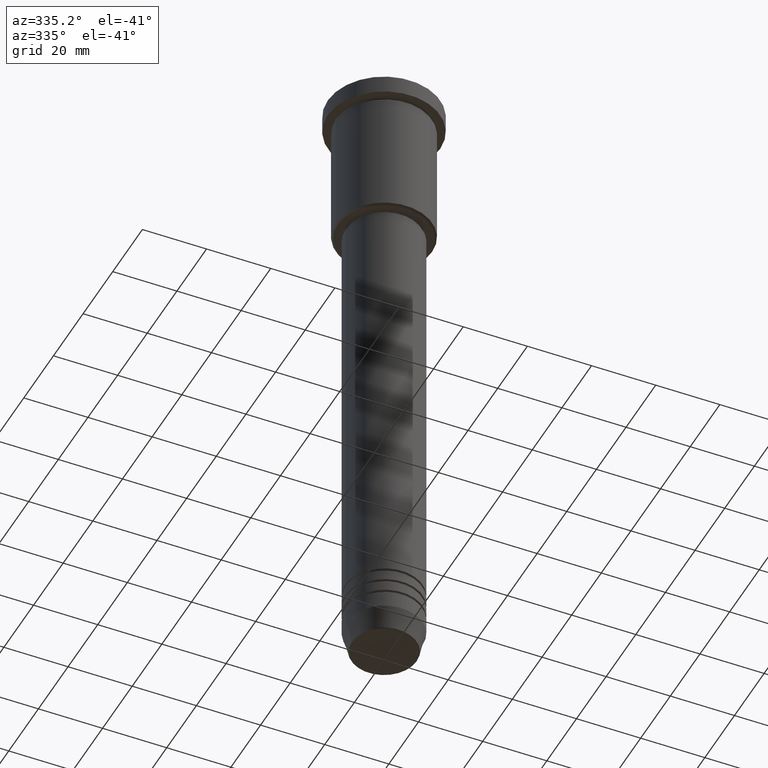
[diagram: clean part render]
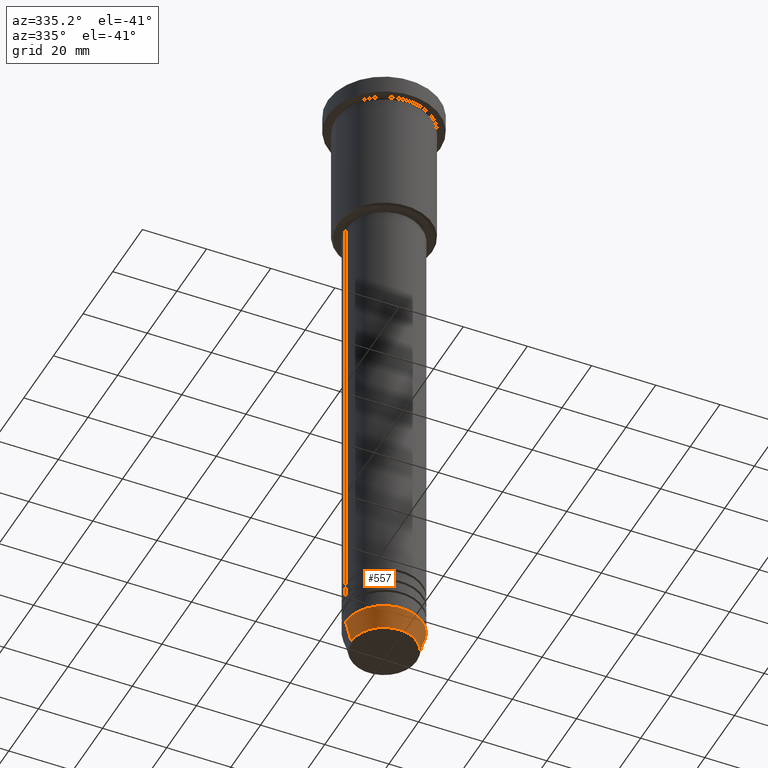
[diagram: same view with one face highlighted and labeled with its STEP entity id]
A machine part, auxiliary view. The second image highlights one B-rep face of the part: STEP entity #557.
In plain terms, the highlighted conical surface has half-angle 15 deg.
Its self-contained STEP definition (entity closure, byte-faithful):
#12 = DIRECTION ( 'NONE',  ( -0.2588190451025213501, 3.169619151431772337E-17, 0.9659258262890680902 ) ) ;
#54 = EDGE_CURVE ( 'NONE', #846, #210, #716, .T. ) ;
#56 = FACE_OUTER_BOUND ( 'NONE', #594, .T. ) ;
#80 = DIRECTION ( 'NONE',  ( -0.000000000000000000, -0.000000000000000000, 1.000000000000000000 ) ) ;
#82 = CARTESIAN_POINT ( 'NONE',  ( 10.22365507213719127, 0.000000000000000000, -200.6294095225512706 ) ) ;
#96 = CARTESIAN_POINT ( 'NONE',  ( 0.000000000000000000, 0.000000000000000000, -200.6294095225512706 ) ) ;
#116 = ORIENTED_EDGE ( 'NONE', *, *, #950, .F. ) ;
#182 = ORIENTED_EDGE ( 'NONE', *, *, #54, .F. ) ;
#196 = AXIS2_PLACEMENT_3D ( 'NONE', #703, #80, #813 ) ;
#210 = VERTEX_POINT ( 'NONE', #566 ) ;
#241 = EDGE_CURVE ( 'NONE', #299, #744, #408, .T. ) ;
#251 = CARTESIAN_POINT ( 'NONE',  ( 12.00000000000000000, 0.000000000000000000, -194.0000000000000000 ) ) ;
#288 = LINE ( 'NONE', #655, #1022 ) ;
#299 = VERTEX_POINT ( 'NONE', #850 ) ;
#343 = DIRECTION ( 'NONE',  ( 0.2588190451025213501, 0.000000000000000000, 0.9659258262890680902 ) ) ;
#352 = AXIS2_PLACEMENT_3D ( 'NONE', #96, #1014, #728 ) ;
#408 = CIRCLE ( 'NONE', #352, 10.22365507213719127 ) ;
#417 = DIRECTION ( 'NONE',  ( 1.000000000000000000, 0.000000000000000000, 0.000000000000000000 ) ) ;
#419 = LINE ( 'NONE', #251, #1157 ) ;
#479 = EDGE_CURVE ( 'NONE', #744, #210, #419, .T. ) ;
#557 = ADVANCED_FACE ( 'NONE', ( #56 ), #769, .T. ) ;
#566 = CARTESIAN_POINT ( 'NONE',  ( 12.00000000000000000, 0.000000000000000000, -194.0000000000000000 ) ) ;
#594 = EDGE_LOOP ( 'NONE', ( #116, #1166, #1016, #182 ) ) ;
#655 = CARTESIAN_POINT ( 'NONE',  ( -12.00000000000000000, 1.469576158976823947E-15, -194.0000000000000000 ) ) ;
#703 = CARTESIAN_POINT ( 'NONE',  ( 0.000000000000000000, 0.000000000000000000, -194.0000000000000000 ) ) ;
#716 = CIRCLE ( 'NONE', #196, 12.00000000000000000 ) ;
#728 = DIRECTION ( 'NONE',  ( 1.000000000000000000, 0.000000000000000000, 0.000000000000000000 ) ) ;
#743 = CARTESIAN_POINT ( 'NONE',  ( -12.00000000000000000, 1.469576158976823947E-15, -194.0000000000000000 ) ) ;
#744 = VERTEX_POINT ( 'NONE', #82 ) ;
#769 = CONICAL_SURFACE ( 'NONE', #927, 12.00000000000000000, 0.2617993877991500740 ) ;
#813 = DIRECTION ( 'NONE',  ( 1.000000000000000000, 0.000000000000000000, 0.000000000000000000 ) ) ;
#846 = VERTEX_POINT ( 'NONE', #743 ) ;
#850 = CARTESIAN_POINT ( 'NONE',  ( -10.22365507213719127, 1.360806402472382744E-15, -200.6294095225512706 ) ) ;
#864 = CARTESIAN_POINT ( 'NONE',  ( 0.000000000000000000, 0.000000000000000000, -194.0000000000000000 ) ) ;
#872 = DIRECTION ( 'NONE',  ( -0.000000000000000000, -0.000000000000000000, 1.000000000000000000 ) ) ;
#927 = AXIS2_PLACEMENT_3D ( 'NONE', #864, #872, #417 ) ;
#950 = EDGE_CURVE ( 'NONE', #299, #846, #288, .T. ) ;
#1014 = DIRECTION ( 'NONE',  ( -0.000000000000000000, -0.000000000000000000, 1.000000000000000000 ) ) ;
#1016 = ORIENTED_EDGE ( 'NONE', *, *, #479, .T. ) ;
#1022 = VECTOR ( 'NONE', #12, 1000.000000000000000 ) ;
#1157 = VECTOR ( 'NONE', #343, 1000.000000000000000 ) ;
#1166 = ORIENTED_EDGE ( 'NONE', *, *, #241, .T. ) ;